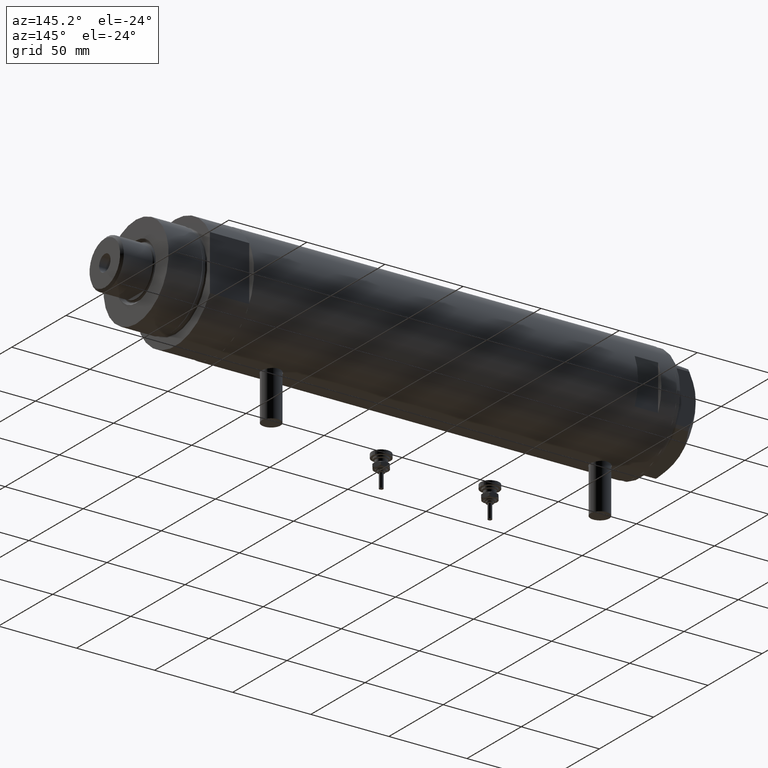
[diagram: clean part render]
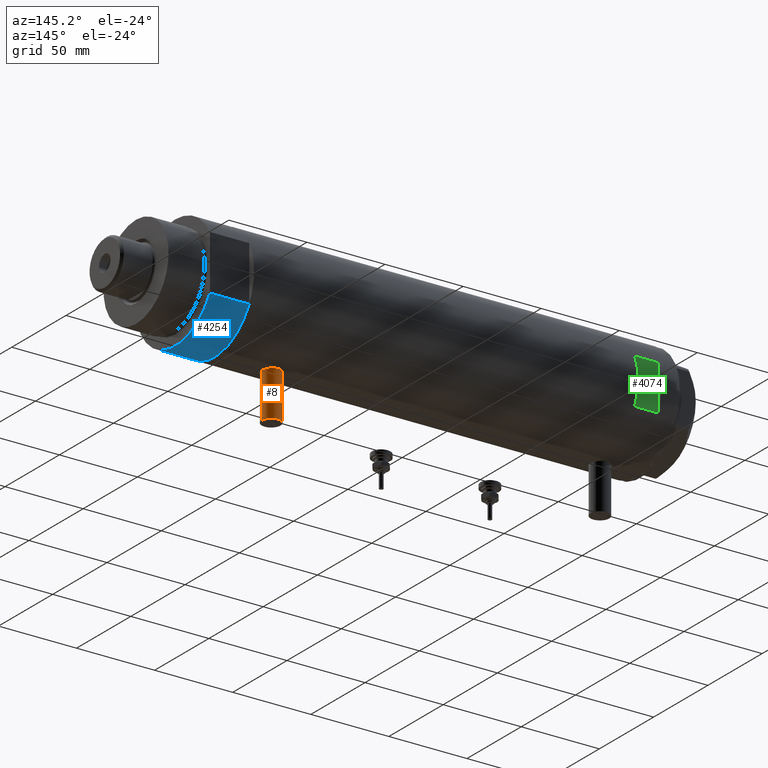
[diagram: same view with three faces highlighted in distinct colors, each labeled with its STEP entity id]
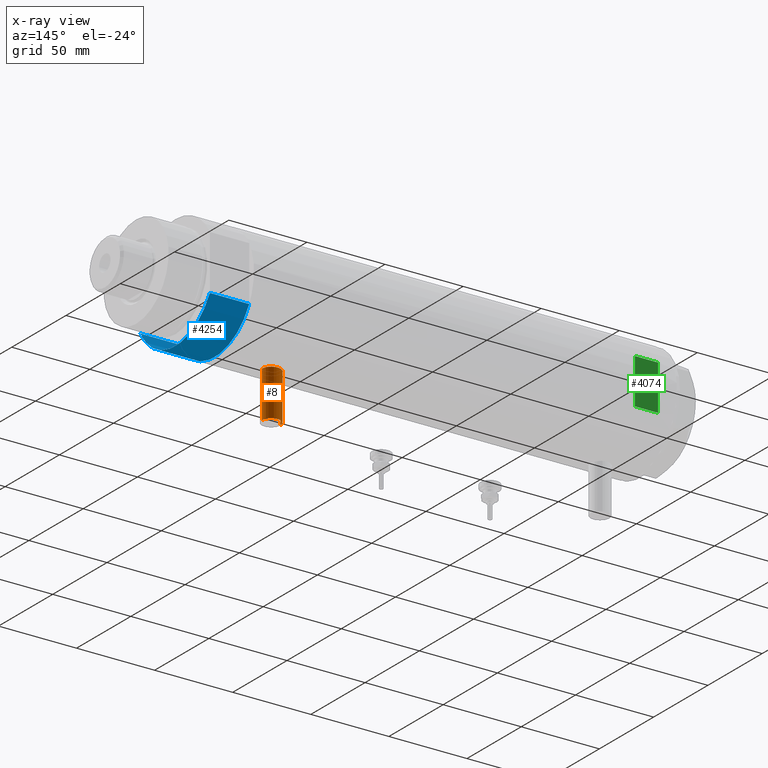
[diagram: x-ray of the same camera — body ghosted, the three highlighted faces saturated]
A machine part, auxiliary view with three faces highlighted in distinct colors.
The next image is the same camera in x-ray (body ghosted, the three faces saturated) — at least one of them is partly hidden behind the body in this view.
Their STEP definitions:

[orange] entity #8 — the highlighted cylindrical surface (edge-blend (fillet) strip) has radius 6 mm, axis along (0, 0, 1).
#8 = ADVANCED_FACE ( 'NONE', ( #1107 ), #230, .T. ) ;
#98 = DIRECTION ( 'NONE',  ( 0.000000000000000000, 0.000000000000000000, 1.000000000000000000 ) ) ;
#127 = EDGE_CURVE ( 'NONE', #338, #3702, #3227, .T. ) ;
#133 = CARTESIAN_POINT ( 'NONE',  ( -35.29999999999999716, 0.000000000000000000, -105.0999999999999943 ) ) ;
#230 = CYLINDRICAL_SURFACE ( 'NONE', #3795, 6.000000000000005329 ) ;
#338 = VERTEX_POINT ( 'NONE', #2594 ) ;
#367 = CIRCLE ( 'NONE', #4381, 6.000000000000005329 ) ;
#458 = EDGE_CURVE ( 'NONE', #5482, #3702, #367, .T. ) ;
#577 = CARTESIAN_POINT ( 'NONE',  ( -35.29999999999999716, 0.000000000000000000, -99.09999999999999432 ) ) ;
#1063 = ORIENTED_EDGE ( 'NONE', *, *, #458, .T. ) ;
#1085 = CARTESIAN_POINT ( 'NONE',  ( -35.29999999999999716, 7.347880794884119736E-16, -93.09999999999999432 ) ) ;
#1107 = FACE_OUTER_BOUND ( 'NONE', #5315, .T. ) ;
#1289 = AXIS2_PLACEMENT_3D ( 'NONE', #5668, #3455, #1549 ) ;
#1391 = DIRECTION ( 'NONE',  ( -1.000000000000000000, 0.000000000000000000, 0.000000000000000000 ) ) ;
#1542 = VECTOR ( 'NONE', #3838, 1000.000000000000000 ) ;
#1549 = DIRECTION ( 'NONE',  ( 0.000000000000000000, 0.000000000000000000, 1.000000000000000000 ) ) ;
#1876 = CARTESIAN_POINT ( 'NONE',  ( -65.00000000000000000, 0.000000000000000000, -105.0999999999999943 ) ) ;
#1899 = ORIENTED_EDGE ( 'NONE', *, *, #127, .F. ) ;
#1997 = VERTEX_POINT ( 'NONE', #3329 ) ;
#2047 = CARTESIAN_POINT ( 'NONE',  ( -65.00000000000000000, 0.000000000000000000, -99.09999999999999432 ) ) ;
#2534 = CARTESIAN_POINT ( 'NONE',  ( -65.00000000000000000, 7.347880794884122694E-16, -93.09999999999999432 ) ) ;
#2594 = CARTESIAN_POINT ( 'NONE',  ( -65.00000000000000000, 0.000000000000000000, -105.0999999999999943 ) ) ;
#3005 = LINE ( 'NONE', #2534, #1542 ) ;
#3013 = DIRECTION ( 'NONE',  ( 1.000000000000000000, -0.000000000000000000, -0.000000000000000000 ) ) ;
#3227 = LINE ( 'NONE', #1876, #5756 ) ;
#3329 = CARTESIAN_POINT ( 'NONE',  ( -65.00000000000000000, 7.347880794884119736E-16, -93.09999999999999432 ) ) ;
#3455 = DIRECTION ( 'NONE',  ( -1.000000000000000000, 0.000000000000000000, 0.000000000000000000 ) ) ;
#3702 = VERTEX_POINT ( 'NONE', #133 ) ;
#3795 = AXIS2_PLACEMENT_3D ( 'NONE', #2047, #3013, #4859 ) ;
#3838 = DIRECTION ( 'NONE',  ( 1.000000000000000000, -0.000000000000000000, -0.000000000000000000 ) ) ;
#4172 = ORIENTED_EDGE ( 'NONE', *, *, #4364, .T. ) ;
#4364 = EDGE_CURVE ( 'NONE', #1997, #5482, #3005, .T. ) ;
#4381 = AXIS2_PLACEMENT_3D ( 'NONE', #577, #1391, #98 ) ;
#4859 = DIRECTION ( 'NONE',  ( 0.000000000000000000, 0.000000000000000000, -1.000000000000000000 ) ) ;
#5044 = ORIENTED_EDGE ( 'NONE', *, *, #5794, .F. ) ;
#5084 = DIRECTION ( 'NONE',  ( 1.000000000000000000, -0.000000000000000000, -0.000000000000000000 ) ) ;
#5239 = CIRCLE ( 'NONE', #1289, 6.000000000000005329 ) ;
#5315 = EDGE_LOOP ( 'NONE', ( #5044, #4172, #1063, #1899 ) ) ;
#5482 = VERTEX_POINT ( 'NONE', #1085 ) ;
#5668 = CARTESIAN_POINT ( 'NONE',  ( -65.00000000000000000, 0.000000000000000000, -99.09999999999999432 ) ) ;
#5756 = VECTOR ( 'NONE', #5084, 1000.000000000000000 ) ;
#5794 = EDGE_CURVE ( 'NONE', #1997, #338, #5239, .T. ) ;

[blue] entity #4254 — the highlighted cylindrical surface (partial cylindrical patch) has radius 36.5 mm, axis along (-1, -0, 0).
#105 = FACE_OUTER_BOUND ( 'NONE', #5533, .T. ) ;
#123 = DIRECTION ( 'NONE',  ( 1.000000000000000000, 0.000000000000000000, 0.000000000000000000 ) ) ;
#222 = LINE ( 'NONE', #254, #3716 ) ;
#254 = CARTESIAN_POINT ( 'NONE',  ( 17.55704986607943141, 32.00000000000000000, 0.000000000000000000 ) ) ;
#370 = CARTESIAN_POINT ( 'NONE',  ( 17.55704986607943496, -32.00000000000000000, 25.19999999999999929 ) ) ;
#884 = AXIS2_PLACEMENT_3D ( 'NONE', #1851, #2407, #3683 ) ;
#909 = DIRECTION ( 'NONE',  ( 0.000000000000000000, 0.000000000000000000, 1.000000000000000000 ) ) ;
#963 = ORIENTED_EDGE ( 'NONE', *, *, #5297, .F. ) ;
#1111 = VERTEX_POINT ( 'NONE', #370 ) ;
#1277 = EDGE_CURVE ( 'NONE', #1340, #5287, #4392, .T. ) ;
#1323 = VECTOR ( 'NONE', #4328, 1000.000000000000000 ) ;
#1340 = VERTEX_POINT ( 'NONE', #5527 ) ;
#1516 = ORIENTED_EDGE ( 'NONE', *, *, #1277, .T. ) ;
#1623 = VERTEX_POINT ( 'NONE', #5743 ) ;
#1637 = ORIENTED_EDGE ( 'NONE', *, *, #2496, .T. ) ;
#1851 = CARTESIAN_POINT ( 'NONE',  ( 0.000000000000000000, 0.000000000000000000, 25.19999999999999929 ) ) ;
#1958 = CARTESIAN_POINT ( 'NONE',  ( 0.000000000000000000, 0.000000000000000000, 25.19999999999999929 ) ) ;
#2034 = DIRECTION ( 'NONE',  ( -0.000000000000000000, -0.000000000000000000, 1.000000000000000000 ) ) ;
#2156 = LINE ( 'NONE', #3423, #1323 ) ;
#2172 = EDGE_CURVE ( 'NONE', #1340, #1111, #2156, .T. ) ;
#2243 = DIRECTION ( 'NONE',  ( 1.000000000000000000, 0.000000000000000000, 0.000000000000000000 ) ) ;
#2365 = CARTESIAN_POINT ( 'NONE',  ( 17.55704986607943496, 32.00000000000000000, 0.000000000000000000 ) ) ;
#2397 = DIRECTION ( 'NONE',  ( 0.000000000000000000, 0.000000000000000000, 1.000000000000000000 ) ) ;
#2407 = DIRECTION ( 'NONE',  ( -0.000000000000000000, -0.000000000000000000, -1.000000000000000000 ) ) ;
#2496 = EDGE_CURVE ( 'NONE', #5287, #1623, #222, .T. ) ;
#2642 = CIRCLE ( 'NONE', #5622, 36.50000000000000000 ) ;
#3127 = ORIENTED_EDGE ( 'NONE', *, *, #2172, .F. ) ;
#3423 = CARTESIAN_POINT ( 'NONE',  ( 17.55704986607943141, -32.00000000000000000, 0.000000000000000000 ) ) ;
#3683 = DIRECTION ( 'NONE',  ( -1.000000000000000000, 0.000000000000000000, 0.000000000000000000 ) ) ;
#3716 = VECTOR ( 'NONE', #2034, 1000.000000000000000 ) ;
#4133 = CYLINDRICAL_SURFACE ( 'NONE', #884, 36.50000000000000000 ) ;
#4254 = ADVANCED_FACE ( 'NONE', ( #105 ), #4133, .T. ) ;
#4328 = DIRECTION ( 'NONE',  ( -0.000000000000000000, -0.000000000000000000, 1.000000000000000000 ) ) ;
#4392 = CIRCLE ( 'NONE', #5370, 36.50000000000000000 ) ;
#4548 = CARTESIAN_POINT ( 'NONE',  ( 0.000000000000000000, 0.000000000000000000, 0.000000000000000000 ) ) ;
#5287 = VERTEX_POINT ( 'NONE', #2365 ) ;
#5297 = EDGE_CURVE ( 'NONE', #1111, #1623, #2642, .T. ) ;
#5370 = AXIS2_PLACEMENT_3D ( 'NONE', #4548, #909, #2243 ) ;
#5527 = CARTESIAN_POINT ( 'NONE',  ( 17.55704986607943141, -32.00000000000000000, 0.000000000000000000 ) ) ;
#5533 = EDGE_LOOP ( 'NONE', ( #963, #3127, #1516, #1637 ) ) ;
#5622 = AXIS2_PLACEMENT_3D ( 'NONE', #1958, #2397, #123 ) ;
#5743 = CARTESIAN_POINT ( 'NONE',  ( 17.55704986607943496, 32.00000000000000000, 25.19999999999999929 ) ) ;

[green] entity #4074 — the highlighted planar face has unit normal (0, -1, -0).
#60 = VECTOR ( 'NONE', #4830, 1000.000000000000000 ) ;
#329 = CARTESIAN_POINT ( 'NONE',  ( -36.50000000000000000, 33.50000000000000000, 125.3999999999999773 ) ) ;
#546 = VERTEX_POINT ( 'NONE', #690 ) ;
#569 = EDGE_LOOP ( 'NONE', ( #5166, #4631, #4938, #2471 ) ) ;
#677 = LINE ( 'NONE', #3513, #3369 ) ;
#690 = CARTESIAN_POINT ( 'NONE',  ( 14.49137674618942739, 33.50000000000000000, 125.3999999999999773 ) ) ;
#1208 = DIRECTION ( 'NONE',  ( 0.000000000000000000, -1.000000000000000000, -0.000000000000000000 ) ) ;
#1536 = VECTOR ( 'NONE', #5696, 1000.000000000000000 ) ;
#1644 = CARTESIAN_POINT ( 'NONE',  ( -14.49137674618942917, 33.50000000000000000, 110.3999999999999773 ) ) ;
#1930 = VERTEX_POINT ( 'NONE', #2356 ) ;
#2144 = VECTOR ( 'NONE', #4094, 1000.000000000000000 ) ;
#2324 = CARTESIAN_POINT ( 'NONE',  ( 14.49137674618942739, 33.50000000000000000, -135.4000000000000057 ) ) ;
#2356 = CARTESIAN_POINT ( 'NONE',  ( -14.49137674618942739, 33.50000000000000000, 125.3999999999999773 ) ) ;
#2471 = ORIENTED_EDGE ( 'NONE', *, *, #5434, .T. ) ;
#2579 = CARTESIAN_POINT ( 'NONE',  ( -36.50000000000000000, 33.50000000000000000, 125.3999999999999773 ) ) ;
#2583 = VERTEX_POINT ( 'NONE', #5851 ) ;
#2971 = EDGE_CURVE ( 'NONE', #546, #2583, #5521, .T. ) ;
#3205 = EDGE_CURVE ( 'NONE', #3452, #2583, #4695, .T. ) ;
#3369 = VECTOR ( 'NONE', #3870, 1000.000000000000000 ) ;
#3452 = VERTEX_POINT ( 'NONE', #1644 ) ;
#3476 = EDGE_CURVE ( 'NONE', #3452, #1930, #677, .T. ) ;
#3513 = CARTESIAN_POINT ( 'NONE',  ( -14.49137674618942739, 33.50000000000000000, -135.4000000000000057 ) ) ;
#3870 = DIRECTION ( 'NONE',  ( 0.000000000000000000, 0.000000000000000000, 1.000000000000000000 ) ) ;
#4074 = ADVANCED_FACE ( 'NONE', ( #5834 ), #4427, .F. ) ;
#4094 = DIRECTION ( 'NONE',  ( -0.000000000000000000, -0.000000000000000000, -1.000000000000000000 ) ) ;
#4427 = PLANE ( 'NONE',  #5612 ) ;
#4631 = ORIENTED_EDGE ( 'NONE', *, *, #3205, .F. ) ;
#4695 = LINE ( 'NONE', #5132, #1536 ) ;
#4830 = DIRECTION ( 'NONE',  ( 1.000000000000000000, -0.000000000000000000, -0.000000000000000000 ) ) ;
#4894 = DIRECTION ( 'NONE',  ( 0.000000000000000000, 0.000000000000000000, -1.000000000000000000 ) ) ;
#4938 = ORIENTED_EDGE ( 'NONE', *, *, #3476, .T. ) ;
#5132 = CARTESIAN_POINT ( 'NONE',  ( -36.50000000000000000, 33.50000000000000000, 110.3999999999999773 ) ) ;
#5166 = ORIENTED_EDGE ( 'NONE', *, *, #2971, .T. ) ;
#5317 = LINE ( 'NONE', #2579, #60 ) ;
#5434 = EDGE_CURVE ( 'NONE', #1930, #546, #5317, .T. ) ;
#5521 = LINE ( 'NONE', #2324, #2144 ) ;
#5612 = AXIS2_PLACEMENT_3D ( 'NONE', #329, #1208, #4894 ) ;
#5696 = DIRECTION ( 'NONE',  ( 1.000000000000000000, -0.000000000000000000, -0.000000000000000000 ) ) ;
#5834 = FACE_OUTER_BOUND ( 'NONE', #569, .T. ) ;
#5851 = CARTESIAN_POINT ( 'NONE',  ( 14.49137674618942917, 33.50000000000000000, 110.3999999999999773 ) ) ;